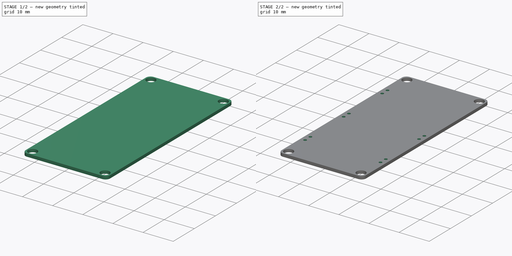
[diagram: build sequence overview — one tinted view per stage of 2, left to right]
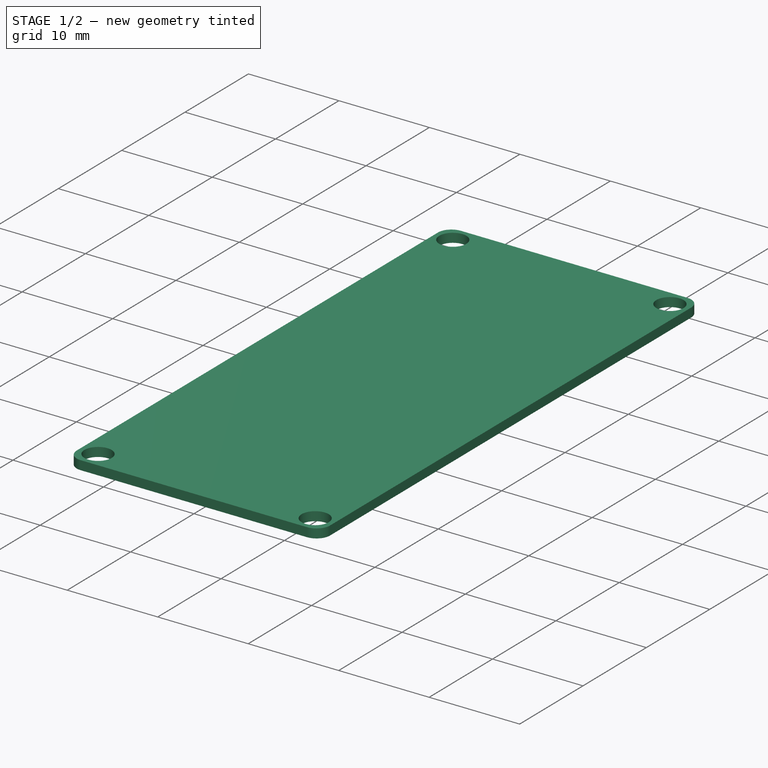
[diagram: stage 1 of 2 — iso view after this stage's code; geometry added in this stage tinted green]
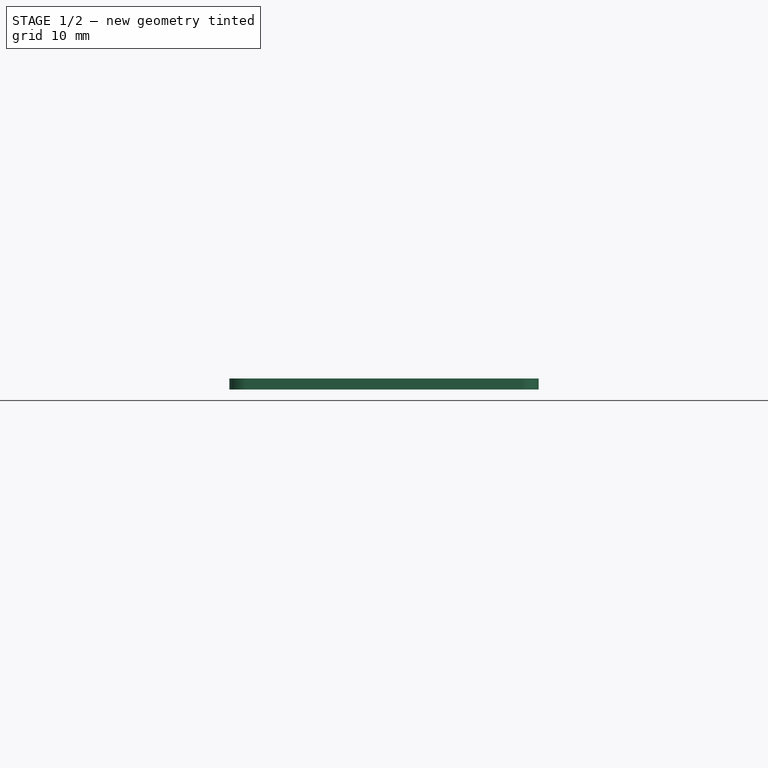
[diagram: stage 1 of 2 — front view after this stage's code; geometry added in this stage tinted green]
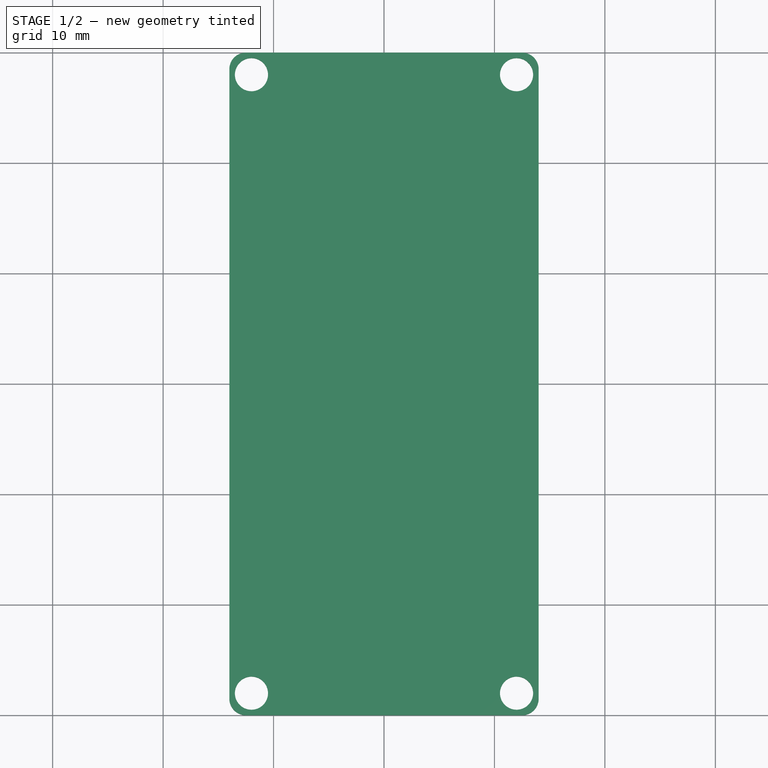
[diagram: stage 1 of 2 — top view after this stage's code; geometry added in this stage tinted green]
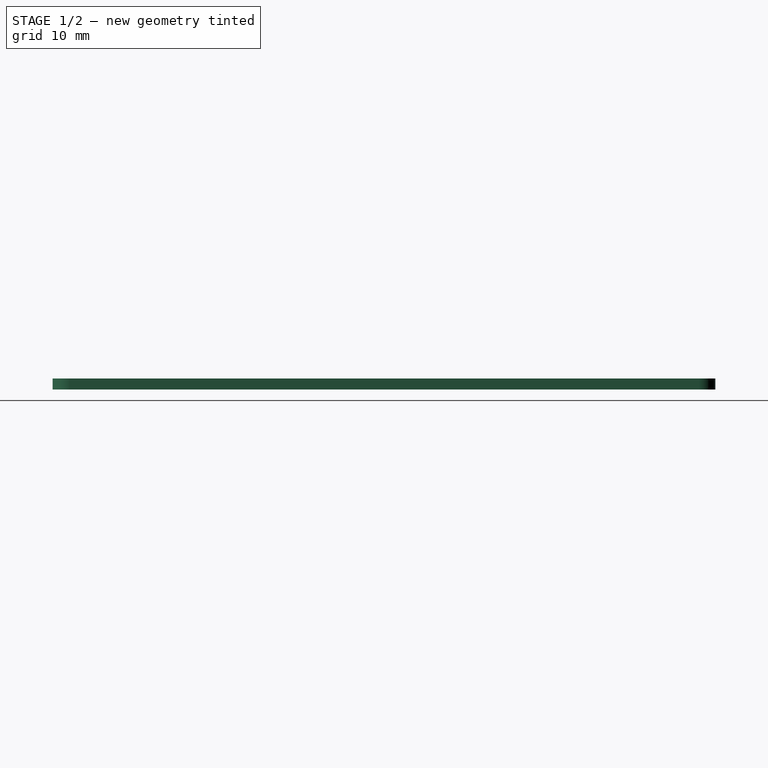
[diagram: stage 1 of 2 — right view after this stage's code; geometry added in this stage tinted green]
FCSTD DOCUMENT  (FreeCAD 0.19R24291 (Git))
Label: battery-charger
License: All rights reserved
LicenseURL: http://en.wikipedia.org/wiki/All_rights_reserved
objects: Sketcher::SketchObject×2, PartDesign::CoordinateSystem×1, PartDesign::Pad×1, PartDesign::Pocket×1, PartDesign::Body×1, App::Part×1
note: 8 computed .brp shape members not serialized (recipe doc carries the construction recipe); baked Part::Feature solids carry a one-line shape summary decoded from their .brp

FEATURE [PartDesign::CoordinateSystem] LCS_0
  AttacherType = Attacher::AttachEngine3D
  MapMode = 2
  Support = -> [X_Axis]
FEATURE [Sketcher::SketchObject] Sketch  label="sk_pcb"
  FullyConstrained = true
  MapMode = 5
  Support = -> [XY_Plane001]
  sketch-geometry (12):
    g0: LineSegment StartX=-12.5 StartY=30 StartZ=0 EndX=12.5 EndY=30 EndZ=0
    g1: LineSegment StartX=14 StartY=28.5 StartZ=0 EndX=14 EndY=-28.5 EndZ=0
    g2: LineSegment StartX=12.5 StartY=-30 StartZ=0 EndX=-12.5 EndY=-30 EndZ=0
    g3: LineSegment StartX=-14 StartY=-28.5 StartZ=0 EndX=-14 EndY=28.5 EndZ=0
    g4: Circle CenterX=-12 CenterY=28 CenterZ=0 NormalX=0 NormalY=0 NormalZ=1 AngleXU=0 Radius=1.5
    g5: Circle CenterX=12 CenterY=28 CenterZ=0 NormalX=0 NormalY=0 NormalZ=1 AngleXU=0 Radius=1.5
    g6: Circle CenterX=-12 CenterY=-28 CenterZ=0 NormalX=0 NormalY=0 NormalZ=1 AngleXU=0 Radius=1.5
    g7: Circle CenterX=12 CenterY=-28 CenterZ=0 NormalX=0 NormalY=0 NormalZ=1 AngleXU=0 Radius=1.5
    g8: ArcOfCircle CenterX=-12.5 CenterY=28.5 CenterZ=0 NormalX=0 NormalY=0 NormalZ=1 AngleXU=0 Radius=1.5 StartAngle=1.5708 EndAngle=3.14159
    g9: ArcOfCircle CenterX=12.5 CenterY=28.5 CenterZ=0 NormalX=0 NormalY=0 NormalZ=1 AngleXU=0 Radius=1.5 StartAngle=-9e-16 EndAngle=1.5708
    g10: ArcOfCircle CenterX=12.5 CenterY=-28.5 CenterZ=0 NormalX=0 NormalY=0 NormalZ=1 AngleXU=0 Radius=1.5 StartAngle=4.71239 EndAngle=6.28319
    g11: ArcOfCircle CenterX=-12.5 CenterY=-28.5 CenterZ=0 NormalX=0 NormalY=0 NormalZ=1 AngleXU=0 Radius=1.5 StartAngle=3.14159 EndAngle=4.71239
  constraints (28):
    c: Horizontal(g2)
    c: Vertical(g1)
    c: Diameter(g6) = 3  'hole_diameter'
    c: Equal(g6,g7)
    c: Equal(g6,g5)
    c: Equal(g6,g4)
    c: Symmetric(g5,g4,g-2)
    c: Symmetric(g6,g7,g-2)
    c: Symmetric(g6,g4,g-1)
    c: Tangent(g0,g8) = 1.5708
    c: Tangent(g3,g8) = 1.5708
    c: Tangent(g0,g9) = 1.5708
    c: Tangent(g1,g9) = 1.5708
    c: Tangent(g1,g10) = 1.5708
    c: Tangent(g2,g10) = 1.5708
    c: Tangent(g2,g11) = 1.5708
    c: Tangent(g3,g11) = 1.5708
    c: Vertical(g3)
    c: Symmetric(g10,g11,g-2)
    c: DistanceY(g2,g0) = 60  'length'
    c: DistanceX(g3,g1) = 28  'width'
    c: DistanceX(g3,g4) = 2
    c: DistanceY(g4,g0) = 2
    c: Horizontal(g0)
    c: Equal(g8,g9)
    c: Equal(g9,g10)
    c: DistanceY(g2,g7) = 2
    c: Equal(g5,g9)
FEATURE [PartDesign::Pad] Pad  label="pad_pcb"
  Direction = (1,1,1)
  Length = 1
  Length2 = 100
  Profile = -> Sketch
  Type = 0
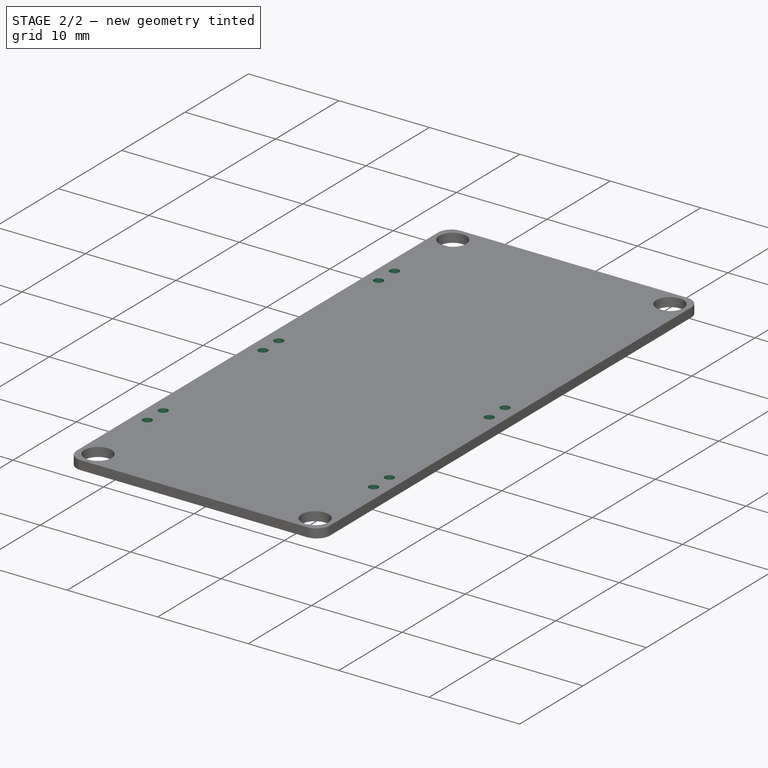
[diagram: stage 2 of 2 — iso view after this stage's code; geometry added in this stage tinted green]
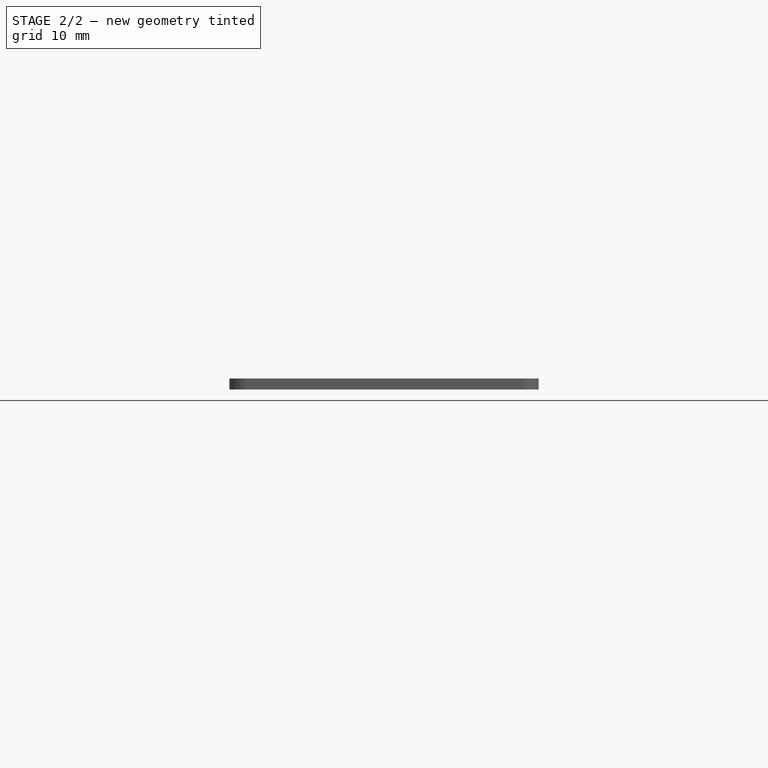
[diagram: stage 2 of 2 — front view after this stage's code; geometry added in this stage tinted green]
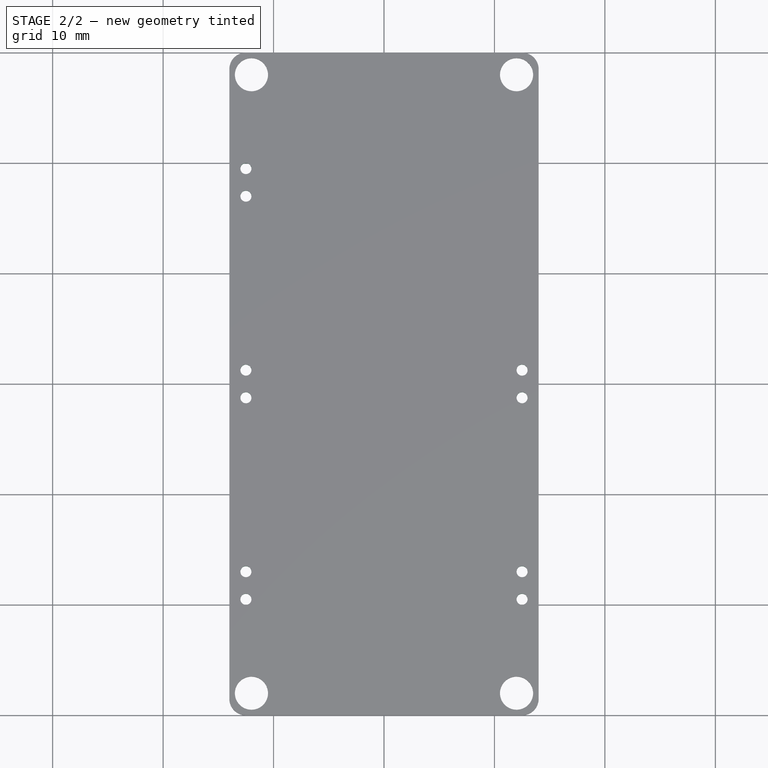
[diagram: stage 2 of 2 — top view after this stage's code; geometry added in this stage tinted green]
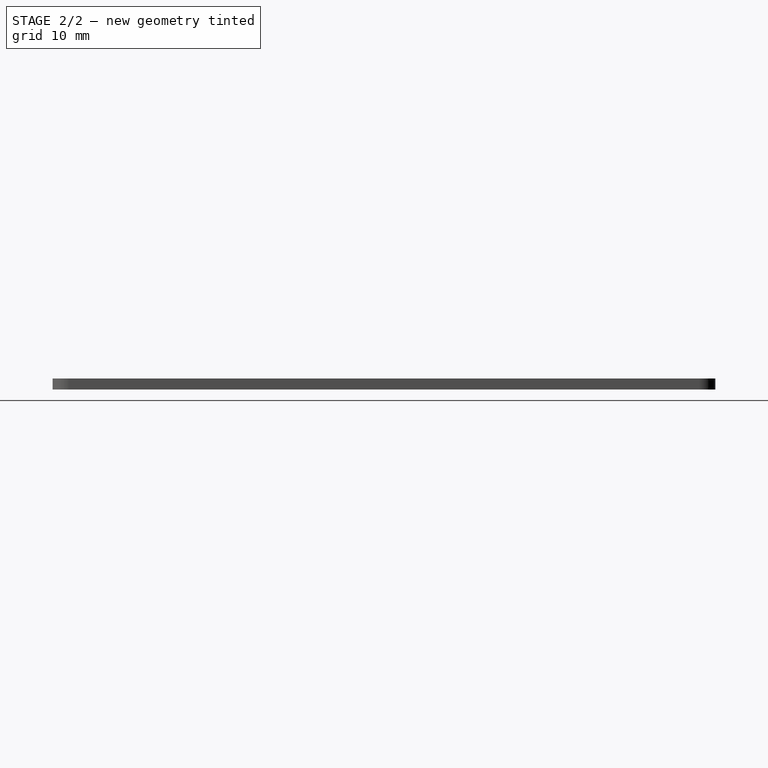
[diagram: stage 2 of 2 — right view after this stage's code; geometry added in this stage tinted green]
FEATURE [Sketcher::SketchObject] Sketch001  label="sk_pin_holes"
  FullyConstrained = true
  MapMode = 5
  Support = -> [XY_Plane001]
  expr: Constraints[23] = <<sk_pcb>>.Constraints.width / 2 - 1mm - .Constraints.pin_hole_diameter / 2
  expr: Constraints[22] = <<sk_pcb>>.Constraints.length / 2 - 10mm - .Constraints.pin_hole_diameter / 2
  expr: Constraints[19] = .Constraints.pin_spacing
  expr: Constraints[17] = .Constraints.pin_spacing
  expr: Constraints[18] = .Constraints.pin_spacing
  expr: Constraints[16] = .Constraints.pin_spacing
  sketch-geometry (10):
    g0: Circle CenterX=-12.5 CenterY=19.5 CenterZ=0 NormalX=0 NormalY=0 NormalZ=1 AngleXU=0 Radius=0.5
    g1: Circle CenterX=-12.5 CenterY=17 CenterZ=0 NormalX=0 NormalY=0 NormalZ=1 AngleXU=0 Radius=0.5
    g2: Circle CenterX=-12.5 CenterY=1.25 CenterZ=0 NormalX=0 NormalY=0 NormalZ=1 AngleXU=0 Radius=0.5
    g3: Circle CenterX=-12.5 CenterY=-1.25 CenterZ=0 NormalX=0 NormalY=0 NormalZ=1 AngleXU=0 Radius=0.5
    g4: Circle CenterX=-12.5 CenterY=-17 CenterZ=0 NormalX=0 NormalY=0 NormalZ=1 AngleXU=0 Radius=0.5
    g5: Circle CenterX=-12.5 CenterY=-19.5 CenterZ=0 NormalX=0 NormalY=0 NormalZ=1 AngleXU=0 Radius=0.5
    g6: Circle CenterX=12.5 CenterY=-17 CenterZ=0 NormalX=0 NormalY=0 NormalZ=1 AngleXU=0 Radius=0.5
    g7: Circle CenterX=12.5 CenterY=-19.5 CenterZ=0 NormalX=0 NormalY=0 NormalZ=1 AngleXU=0 Radius=0.5
    g8: Circle CenterX=12.5 CenterY=1.25 CenterZ=0 NormalX=0 NormalY=0 NormalZ=1 AngleXU=0 Radius=0.5
    g9: Circle CenterX=12.5 CenterY=-1.25 CenterZ=0 NormalX=0 NormalY=0 NormalZ=1 AngleXU=0 Radius=0.5
  constraints (22):
    c: Diameter(g0) = 1  'pin_hole_diameter'
    c: Equal(g0, g1-g5) x5
    c: Equal(g0,g7)
    c: Equal(g0,g6)
    c: Equal(g0,g9)
    c: Equal(g0,g8)
    c: Vertical(g0,g1)
    c: Vertical(g1,g2)
    c: Vertical(g4,g5)
    c: Vertical(g8,g9)
    c: Vertical(g6,g7)
    c: DistanceY(g1,g0) = 2.5  'pin_spacing'
    c: DistanceY(g3,g2) = 2.5
    c: DistanceY(g9,g8) = 2.5
    c: DistanceY(g5,g4) = 2.5
    c: DistanceY(g7,g6) = 2.5
    c: Symmetric(g2,g8,g-2)
    c: Symmetric(g6,g4,g-2)
    c: DistanceY(g-1,g0) = 19.5
    c: DistanceX(g1,g-1) = 12.5
    c: Symmetric(g2,g3,g-1)
    c: Symmetric(g1,g4,g-1)
FEATURE [PartDesign::Pocket] Pocket
  BaseFeature = -> Pad
  Length = 5
  Length2 = 100
  Profile = -> Sketch001
  Reversed = true
  Type = 1
FEATURE [PartDesign::Body] Body  label="battery_charger_body"
  Group = -> [Sketch,Pad,Sketch001,Pocket]
  Origin = -> Origin001
  Tip = -> Pocket
FEATURE [App::Part] battery_charger_part  label="battery_charger_pcb_part"
  Group = -> [LCS_0,Body]
  Origin = -> Origin
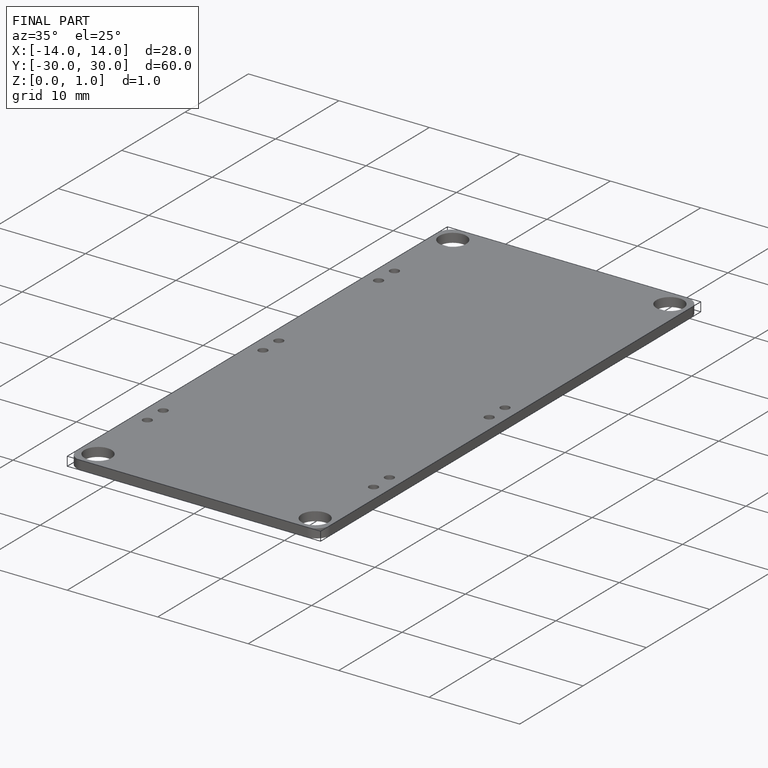
[diagram: finished part — iso view with bounding-box wireframe]
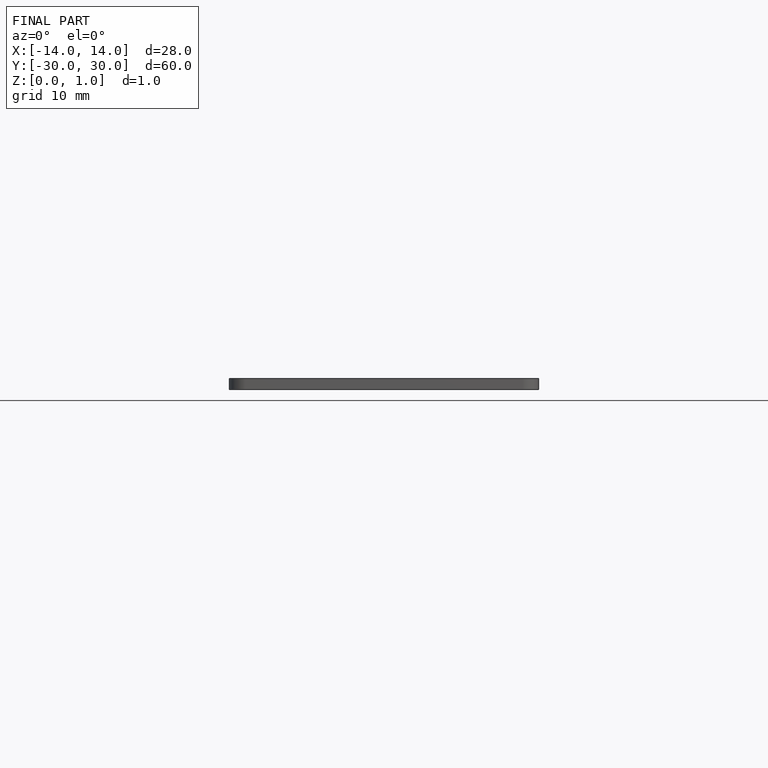
[diagram: finished part — front view with bounding-box wireframe]
